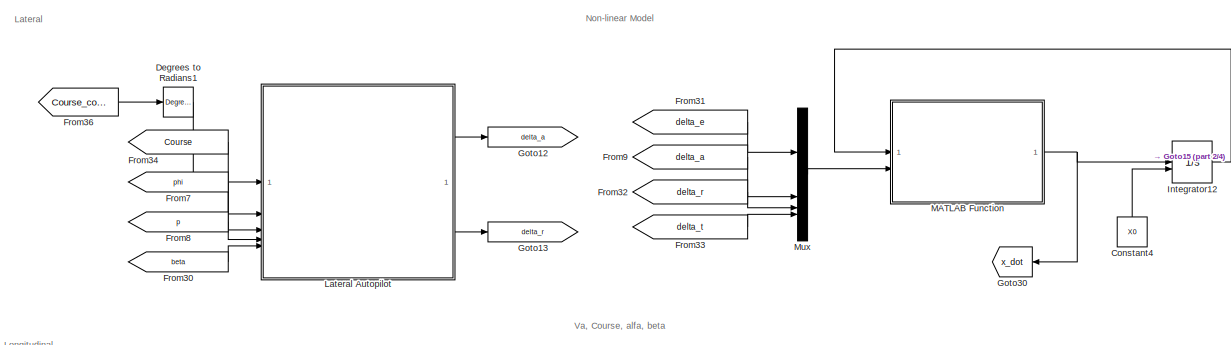
[diagram: root canvas - part 1/4, top left region]
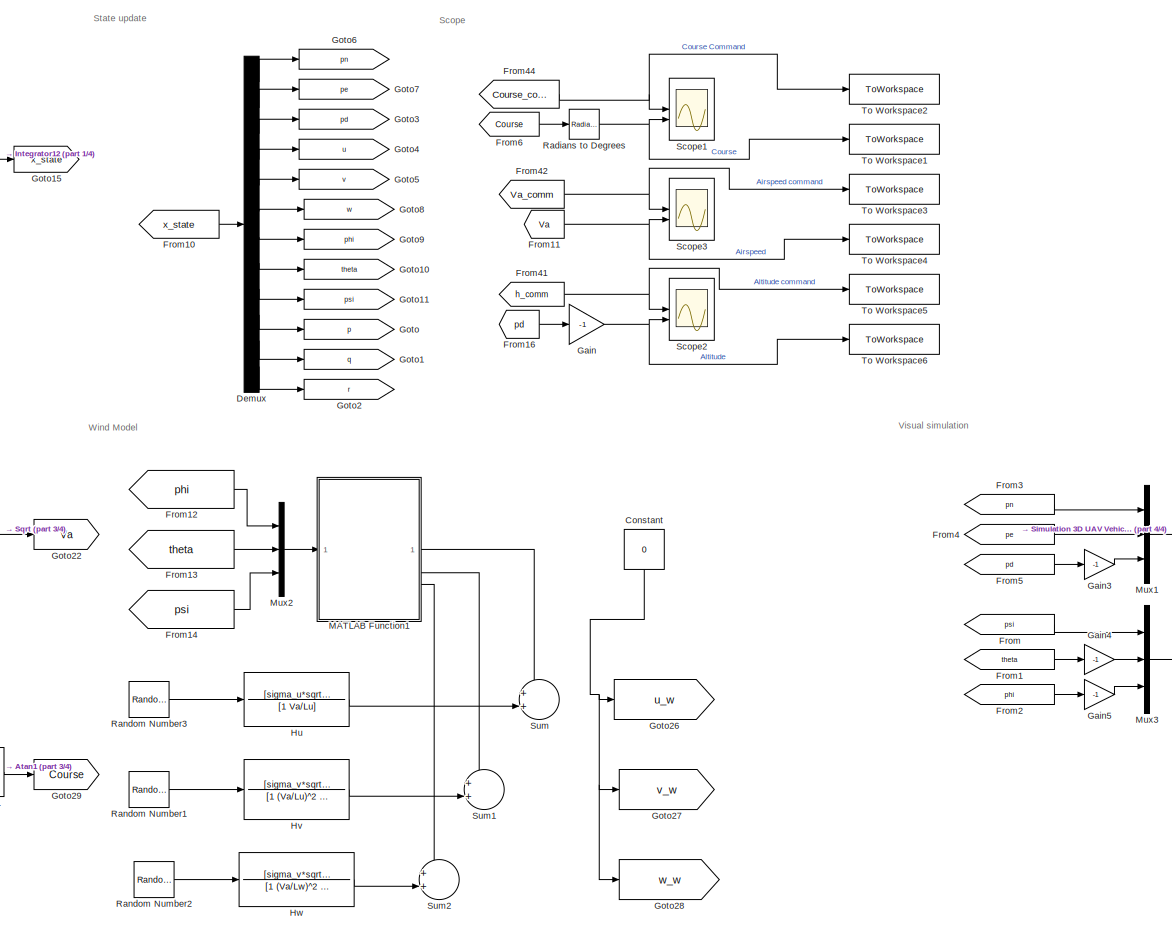
[diagram: root canvas - part 2/4, right side, full height]
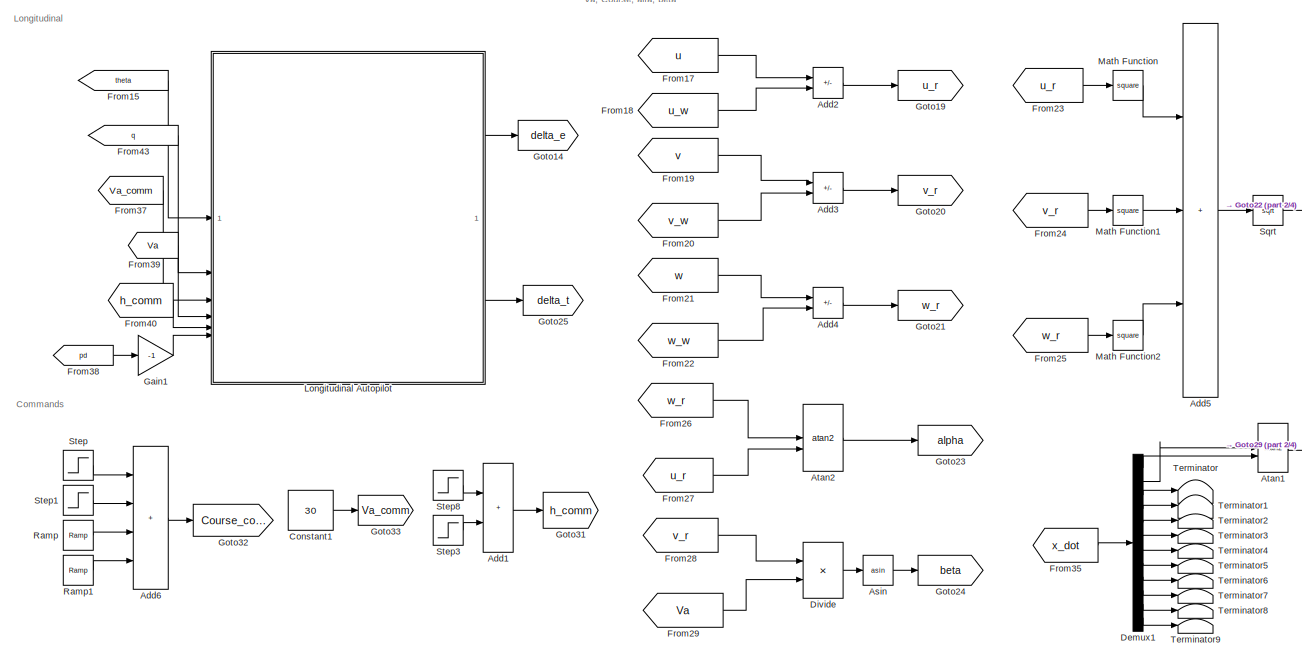
[diagram: root canvas - part 3/4, middle left region]
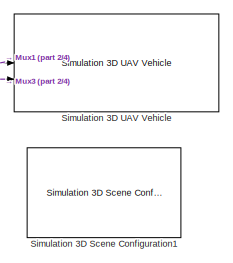
[diagram: root canvas - part 4/4, bottom right region]
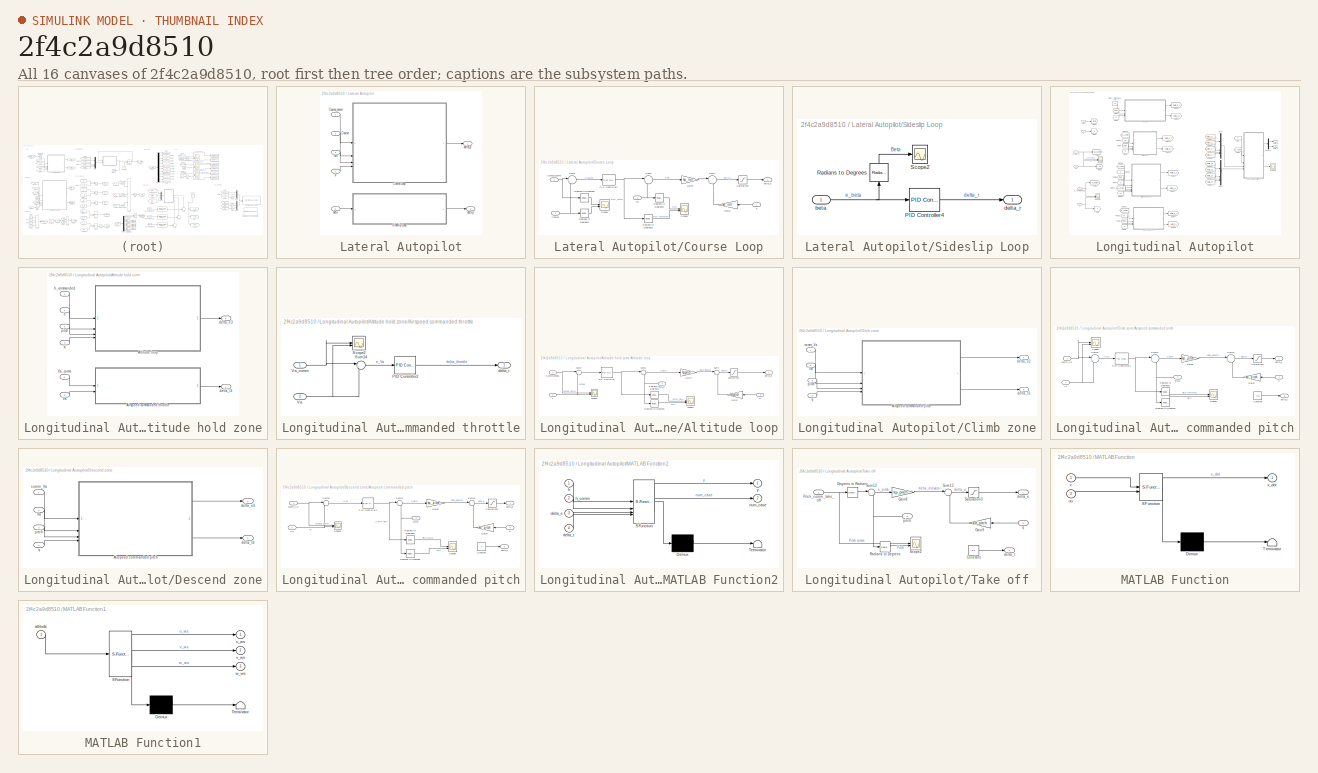
[diagram: thumbnail index - all 16 canvases of the model, root first then tree order]
MODEL slx_2f4c2a9d8510
KIND model
CONFIG AbsTol = auto
CONFIG EnableMultiTasking = off
CONFIG FixedStep = auto
CONFIG InitFcn = X0 = [0; 2; -0.25; 0.01; 0; 0; 0; 0; 0; 0; 0; 0]
CONFIG MaxStep = auto
CONFIG MinStep = auto
CONFIG RelTol = 1e-3
CONFIG SampleTimeConstraint = Unconstrained
CONFIG SolverName = VariableStepAuto
CONFIG StartTime = 0.0
CONFIG StopTime = 30
BLOCK [Sum] Add1
  IconShape = rectangular
BLOCK [Sum] Add2
  IconShape = rectangular
  Inputs = +-
BLOCK [Sum] Add3
  IconShape = rectangular
  Inputs = +-
BLOCK [Sum] Add4
  IconShape = rectangular
  Inputs = +-
BLOCK [Sum] Add5
  IconShape = rectangular
  Inputs = +++
BLOCK [Sum] Add6
  IconShape = rectangular
  Inputs = ++++
BLOCK [Trigonometry] Asin
  Operator = asin
BLOCK [Trigonometry] Atan1
  Operator = atan2
BLOCK [Trigonometry] Atan2
  Operator = atan2
BLOCK [Constant] Constant
  NameLocation = left
  Value = 0
BLOCK [Constant] Constant1
  Value = 30
BLOCK [Constant] Constant4
  NameLocation = right
  Value = X0
BLOCK [Reference] Degrees to Radians1  REF=simulink_extras/Transformations/Degrees to
Radians
  SourceBlock = simulink_extras/Transformations/Degrees to\nRadians
  SourceType = DegreesToRadians
BLOCK [Demux] Demux
  Outputs = 12
BLOCK [Demux] Demux1
  Outputs = 12
BLOCK [Product] Divide
  Inputs = */
BLOCK [From] From
  Commented = on
  GotoTag = psi
  TagVisibility = global
BLOCK [From] From1
  Commented = on
  GotoTag = theta
  TagVisibility = global
BLOCK [From] From10
  GotoTag = x_state
BLOCK [From] From11
  GotoTag = Va
  TagVisibility = global
BLOCK [From] From12
  GotoTag = phi
  TagVisibility = global
BLOCK [From] From13
  GotoTag = theta
  TagVisibility = global
BLOCK [From] From14
  GotoTag = psi
  TagVisibility = global
BLOCK [From] From15
  GotoTag = theta
  TagVisibility = global
BLOCK [From] From16
  GotoTag = pd
  TagVisibility = global
BLOCK [From] From17
  GotoTag = u
  TagVisibility = global
BLOCK [From] From18
  GotoTag = u_w
  TagVisibility = global
BLOCK [From] From19
  GotoTag = v
  TagVisibility = global
BLOCK [From] From2
  Commented = on
  GotoTag = phi
  TagVisibility = global
BLOCK [From] From20
  GotoTag = v_w
  TagVisibility = global
BLOCK [From] From21
  GotoTag = w
  TagVisibility = global
BLOCK [From] From22
  GotoTag = w_w
  TagVisibility = global
BLOCK [From] From23
  GotoTag = u_r
  TagVisibility = global
BLOCK [From] From24
  GotoTag = v_r
  TagVisibility = global
BLOCK [From] From25
  GotoTag = w_r
  TagVisibility = global
BLOCK [From] From26
  GotoTag = w_r
  TagVisibility = global
BLOCK [From] From27
  GotoTag = u_r
  TagVisibility = global
BLOCK [From] From28
  GotoTag = v_r
  TagVisibility = global
BLOCK [From] From29
  GotoTag = Va
  TagVisibility = global
BLOCK [From] From3
  Commented = on
  GotoTag = pn
  TagVisibility = global
BLOCK [From] From30
  GotoTag = beta
  TagVisibility = global
BLOCK [From] From31
  GotoTag = delta_e
  TagVisibility = global
BLOCK [From] From32
  GotoTag = delta_r
  TagVisibility = global
BLOCK [From] From33
  GotoTag = delta_t
  TagVisibility = global
BLOCK [From] From34
  GotoTag = Course
  TagVisibility = global
BLOCK [From] From35
  GotoTag = x_dot
  TagVisibility = global
BLOCK [From] From36
  GotoTag = Course_comm
BLOCK [From] From37
  GotoTag = Va_comm
BLOCK [From] From38
  GotoTag = pd
  TagVisibility = global
BLOCK [From] From39
  GotoTag = Va
  TagVisibility = global
BLOCK [From] From4
  Commented = on
  GotoTag = pe
  TagVisibility = global
BLOCK [From] From40
  GotoTag = h_comm
BLOCK [From] From41
  GotoTag = h_comm
BLOCK [From] From42
  GotoTag = Va_comm
BLOCK [From] From43
  GotoTag = q
  TagVisibility = global
BLOCK [From] From44
  GotoTag = Course_comm
BLOCK [From] From5
  Commented = on
  GotoTag = pd
  TagVisibility = global
BLOCK [From] From6
  GotoTag = Course
  TagVisibility = global
BLOCK [From] From7
  GotoTag = phi
  TagVisibility = global
BLOCK [From] From8
  GotoTag = p
  TagVisibility = global
BLOCK [From] From9
  GotoTag = delta_a
  TagVisibility = global
BLOCK [Gain] Gain
  Gain = -1
BLOCK [Gain] Gain1
  Gain = -1
BLOCK [Gain] Gain3
  Commented = on
  Gain = -1
BLOCK [Gain] Gain4
  Commented = on
  Gain = -1
BLOCK [Gain] Gain5
  Commented = on
  Gain = -1
BLOCK [Goto] Goto
  GotoTag = p
  TagVisibility = global
BLOCK [Goto] Goto1
  GotoTag = q
  TagVisibility = global
BLOCK [Goto] Goto10
  GotoTag = theta
  TagVisibility = global
BLOCK [Goto] Goto11
  GotoTag = psi
  TagVisibility = global
BLOCK [Goto] Goto12
  GotoTag = delta_a
  TagVisibility = global
BLOCK [Goto] Goto13
  GotoTag = delta_r
  TagVisibility = global
BLOCK [Goto] Goto14
  GotoTag = delta_e
  TagVisibility = global
BLOCK [Goto] Goto15
  GotoTag = x_state
BLOCK [Goto] Goto19
  GotoTag = u_r
  TagVisibility = global
BLOCK [Goto] Goto2
  GotoTag = r
  TagVisibility = global
BLOCK [Goto] Goto20
  GotoTag = v_r
  TagVisibility = global
BLOCK [Goto] Goto21
  GotoTag = w_r
  TagVisibility = global
BLOCK [Goto] Goto22
  GotoTag = Va
  TagVisibility = global
BLOCK [Goto] Goto23
  GotoTag = alpha
  TagVisibility = global
BLOCK [Goto] Goto24
  GotoTag = beta
  TagVisibility = global
BLOCK [Goto] Goto25
  GotoTag = delta_t
  TagVisibility = global
BLOCK [Goto] Goto26
  GotoTag = u_w
  TagVisibility = global
BLOCK [Goto] Goto27
  GotoTag = v_w
  TagVisibility = global
BLOCK [Goto] Goto28
  GotoTag = w_w
  TagVisibility = global
BLOCK [Goto] Goto29
  GotoTag = Course
  TagVisibility = global
BLOCK [Goto] Goto3
  GotoTag = pd
  TagVisibility = global
BLOCK [Goto] Goto30
  GotoTag = x_dot
  NameLocation = top
  TagVisibility = global
BLOCK [Goto] Goto31
  GotoTag = h_comm
BLOCK [Goto] Goto32
  GotoTag = Course_comm
BLOCK [Goto] Goto33
  GotoTag = Va_comm
BLOCK [Goto] Goto4
  GotoTag = u
  TagVisibility = global
BLOCK [Goto] Goto5
  GotoTag = v
  TagVisibility = global
BLOCK [Goto] Goto6
  GotoTag = pn
  TagVisibility = global
BLOCK [Goto] Goto7
  GotoTag = pe
  TagVisibility = global
BLOCK [Goto] Goto8
  GotoTag = w
  TagVisibility = global
BLOCK [Goto] Goto9
  GotoTag = phi
  TagVisibility = global
BLOCK [TransferFcn] Hu
  Denominator = [1 Va/Lu]
  Numerator = [sigma_u*sqrt(2*Va/Lu)]
BLOCK [TransferFcn] Hv
  Denominator = [1 (Va/Lu)^2 2*Va/Lu]
  Numerator = [sigma_v*sqrt(3*Va/Lu) Va/(sqrt(3)*Lv)]
BLOCK [TransferFcn] Hw
  Denominator = [1 (Va/Lw)^2 2*Va/Lw]
  Numerator = [sigma_v*sqrt(3*Va/Lw) Va/(sqrt(3)*Lw)]
BLOCK [Integrator] Integrator12
  InitialConditionSource = external
BLOCK [SubSystem] Lateral Autopilot
BLOCK [Inport] Lateral Autopilot/Course
  Port = 2
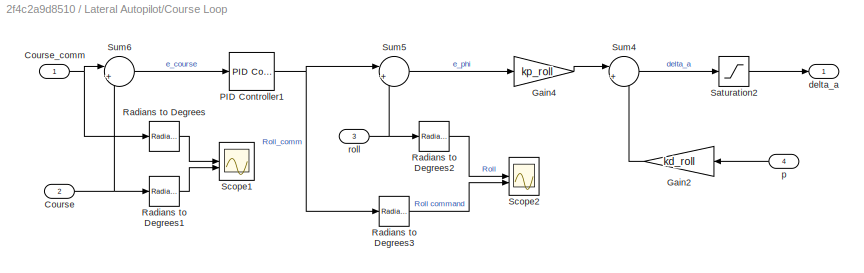
BLOCK [SubSystem] Lateral Autopilot/Course Loop
BLOCK [Inport] Lateral Autopilot/Course Loop/Course
  Port = 2
BLOCK [Inport] Lateral Autopilot/Course Loop/Course_comm
BLOCK [Gain] Lateral Autopilot/Course Loop/Gain2
  Gain = kd_roll
  NameLocation = top
BLOCK [Gain] Lateral Autopilot/Course Loop/Gain4
  Gain = kp_roll
BLOCK [Reference] Lateral Autopilot/Course Loop/PID Controller1  REF=slpidlib/PID Controller
  SourceBlock = slpidlib/PID Controller
  SourceType = PID 1dof
BLOCK [Reference] Lateral Autopilot/Course Loop/Radians to Degrees  REF=simulink_extras/Transformations/Radians
to Degrees
  SourceBlock = simulink_extras/Transformations/Radians\nto Degrees
  SourceType = RadiansToDegrees
BLOCK [Reference] Lateral Autopilot/Course Loop/Radians to Degrees1  REF=simulink_extras/Transformations/Radians
to Degrees
  SourceBlock = simulink_extras/Transformations/Radians\nto Degrees
  SourceType = RadiansToDegrees
BLOCK [Reference] Lateral Autopilot/Course Loop/Radians to Degrees2  REF=simulink_extras/Transformations/Radians
to Degrees
  SourceBlock = simulink_extras/Transformations/Radians\nto Degrees
  SourceType = RadiansToDegrees
BLOCK [Reference] Lateral Autopilot/Course Loop/Radians to Degrees3  REF=simulink_extras/Transformations/Radians
to Degrees
  SourceBlock = simulink_extras/Transformations/Radians\nto Degrees
  SourceType = RadiansToDegrees
BLOCK [Saturate] Lateral Autopilot/Course Loop/Saturation2
  LowerLimit = -0.52
  UpperLimit = 0.52
BLOCK [Scope] Lateral Autopilot/Course Loop/Scope1
  Floating = off
  NumInputPorts = 2
  ScopeSpecificationString = Simulink.scopes.TimeScopeBlockCfg('CurrentConfiguration', extmgr.ConfigurationSet(extmgr.Configuration('Core','General UI',true,'FigureColor',[1 1 1]),extmgr.Configuration('Core','Source UI',true),extmgr.Configuration('Sources','WiredSimulink',true,'DataLoggingVariableName','ScopeData4'),extmgr.Configuration('Visuals','Time Domain',true,'SerializedDisplays',{struct('MinYLimReal','-189.57402','MaxY...<+1759ch>
BLOCK [Scope] Lateral Autopilot/Course Loop/Scope2
  Floating = off
  NumInputPorts = 2
  ScopeSpecificationString = Simulink.scopes.TimeScopeBlockCfg('CurrentConfiguration', extmgr.ConfigurationSet(extmgr.Configuration('Core','General UI',true,'FigureColor',[1 1 1]),extmgr.Configuration('Core','Source UI',true),extmgr.Configuration('Sources','WiredSimulink',true,'DataLoggingVariableName','ScopeData3'),extmgr.Configuration('Visuals','Time Domain',true,'SerializedDisplays',{struct('MinYLimReal','-84.6318','MaxYLi...<+1722ch>
BLOCK [Sum] Lateral Autopilot/Course Loop/Sum4
  Inputs = |+-
BLOCK [Sum] Lateral Autopilot/Course Loop/Sum5
  Inputs = |+-
BLOCK [Sum] Lateral Autopilot/Course Loop/Sum6
  Inputs = |+-
BLOCK [Outport] Lateral Autopilot/Course Loop/delta_a
BLOCK [Inport] Lateral Autopilot/Course Loop/p
  NameLocation = top
  Port = 4
BLOCK [Inport] Lateral Autopilot/Course Loop/roll
  Port = 3
BLOCK [Inport] Lateral Autopilot/Course_comm
BLOCK [SubSystem] Lateral Autopilot/Sideslip Loop
BLOCK [Reference] Lateral Autopilot/Sideslip Loop/PID Controller4  REF=slpidlib/PID Controller
  SourceBlock = slpidlib/PID Controller
  SourceType = PID 1dof
BLOCK [Reference] Lateral Autopilot/Sideslip Loop/Radians to Degrees  REF=simulink_extras/Transformations/Radians
to Degrees
  NameLocation = right
  SourceBlock = simulink_extras/Transformations/Radians\nto Degrees
  SourceType = RadiansToDegrees
BLOCK [Scope] Lateral Autopilot/Sideslip Loop/Scope2
  Floating = off
  NumInputPorts = 1
  ScopeSpecificationString = Simulink.scopes.TimeScopeBlockCfg('CurrentConfiguration', extmgr.ConfigurationSet(extmgr.Configuration('Core','General UI',true,'FigureColor',[1 1 1]),extmgr.Configuration('Core','Source UI',true),extmgr.Configuration('Sources','WiredSimulink',true,'DataLoggingVariableName','ScopeData5'),extmgr.Configuration('Visuals','Time Domain',true,'SerializedDisplays',{struct('MinYLimReal','-13.89411','MaxYL...<+1746ch>
BLOCK [Inport] Lateral Autopilot/Sideslip Loop/beta
BLOCK [Outport] Lateral Autopilot/Sideslip Loop/delta_r
BLOCK [Inport] Lateral Autopilot/beta
  Port = 5
BLOCK [Outport] Lateral Autopilot/delta_a
BLOCK [Outport] Lateral Autopilot/delta_r
  Port = 2
BLOCK [Inport] Lateral Autopilot/p
  Port = 4
BLOCK [Inport] Lateral Autopilot/roll
  Port = 3
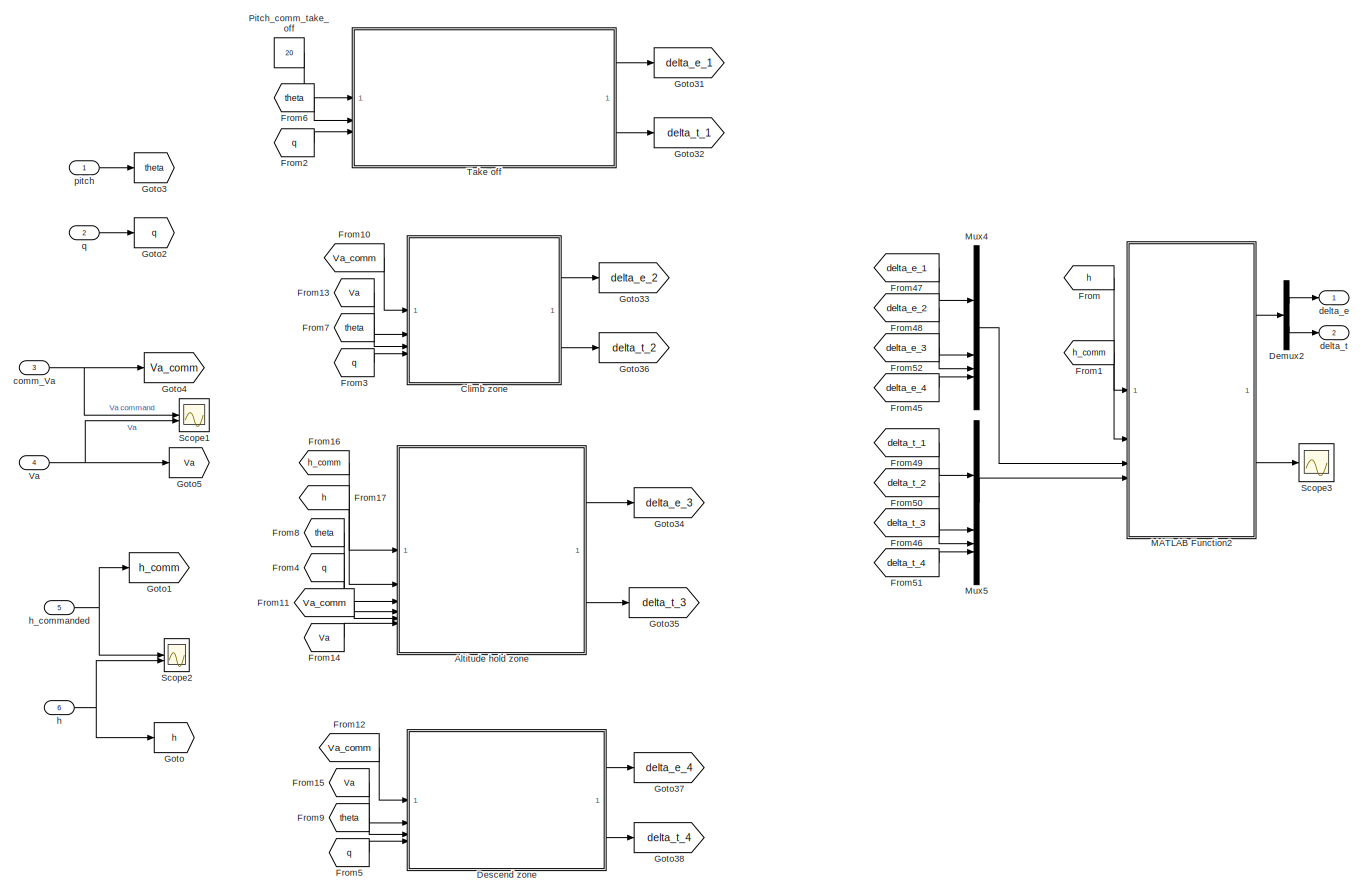
[diagram: Longitudinal Autopilot - part 1/1, most of the canvas]
BLOCK [SubSystem] Longitudinal Autopilot
BLOCK [SubSystem] Longitudinal Autopilot/Altitude hold zone
BLOCK [SubSystem] Longitudinal Autopilot/Altitude hold zone/Airspeed commanded throttle
BLOCK [Reference] Longitudinal Autopilot/Altitude hold zone/Airspeed commanded throttle/PID Controller2  REF=slpidlib/PID Controller
  SourceBlock = slpidlib/PID Controller
  SourceType = PID 1dof
BLOCK [Scope] Longitudinal Autopilot/Altitude hold zone/Airspeed commanded throttle/Scope2
  Floating = off
  NumInputPorts = 2
  ScopeSpecificationString = Simulink.scopes.TimeScopeBlockCfg('CurrentConfiguration', extmgr.ConfigurationSet(extmgr.Configuration('Core','General UI',true,'FigureColor',[1 1 1]),extmgr.Configuration('Core','Source UI',true),extmgr.Configuration('Sources','WiredSimulink',true,'DataLoggingVariableName','ScopeData14'),extmgr.Configuration('Visuals','Time Domain',true,'SerializedDisplays',{struct('MinYLimReal','19.10778','MaxYL...<+1727ch>
BLOCK [Sum] Longitudinal Autopilot/Altitude hold zone/Airspeed commanded throttle/Sum14
  Inputs = |+-
BLOCK [Inport] Longitudinal Autopilot/Altitude hold zone/Airspeed commanded throttle/Va
  Port = 2
BLOCK [Inport] Longitudinal Autopilot/Altitude hold zone/Airspeed commanded throttle/Va_comm
BLOCK [Outport] Longitudinal Autopilot/Altitude hold zone/Airspeed commanded throttle/delta_t
BLOCK [SubSystem] Longitudinal Autopilot/Altitude hold zone/Altitude loop
BLOCK [Gain] Longitudinal Autopilot/Altitude hold zone/Altitude loop/Gain4
  Gain = kp_pitch
BLOCK [Gain] Longitudinal Autopilot/Altitude hold zone/Altitude loop/Gain5
  Gain = kd_pitch
  NameLocation = top
BLOCK [Reference] Longitudinal Autopilot/Altitude hold zone/Altitude loop/PID Controller  REF=slpidlib/PID Controller
  SourceBlock = slpidlib/PID Controller
  SourceType = PID 1dof
BLOCK [Reference] Longitudinal Autopilot/Altitude hold zone/Altitude loop/Radians to Degrees  REF=simulink_extras/Transformations/Radians
to Degrees
  SourceBlock = simulink_extras/Transformations/Radians\nto Degrees
  SourceType = RadiansToDegrees
BLOCK [Reference] Longitudinal Autopilot/Altitude hold zone/Altitude loop/Radians to Degrees1  REF=simulink_extras/Transformations/Radians
to Degrees
  SourceBlock = simulink_extras/Transformations/Radians\nto Degrees
  SourceType = RadiansToDegrees
BLOCK [Saturate] Longitudinal Autopilot/Altitude hold zone/Altitude loop/Saturation2
  LowerLimit = -0.43
  UpperLimit = 0.43
BLOCK [Scope] Longitudinal Autopilot/Altitude hold zone/Altitude loop/Scope2
  Floating = off
  NumInputPorts = 2
  ScopeSpecificationString = Simulink.scopes.TimeScopeBlockCfg('CurrentConfiguration', extmgr.ConfigurationSet(extmgr.Configuration('Core','General UI',true,'FigureColor',[1 1 1]),extmgr.Configuration('Core','Source UI',true),extmgr.Configuration('Sources','WiredSimulink',true,'DataLoggingVariableName','ScopeData12'),extmgr.Configuration('Visuals','Time Domain',true,'SerializedDisplays',{struct('MinYLimReal','-15.15162','MaxY...<+1716ch>
BLOCK [Scope] Longitudinal Autopilot/Altitude hold zone/Altitude loop/Scope3
  Floating = off
  NumInputPorts = 2
  ScopeSpecificationString = Simulink.scopes.TimeScopeBlockCfg('CurrentConfiguration', extmgr.ConfigurationSet(extmgr.Configuration('Core','General UI',true,'FigureColor',[1 1 1]),extmgr.Configuration('Core','Source UI',true),extmgr.Configuration('Sources','WiredSimulink',true,'DataLoggingVariableName','ScopeData11'),extmgr.Configuration('Visuals','Time Domain',true,'SerializedDisplays',{struct('MinYLimReal','-21.44711','MaxY...<+1749ch>
BLOCK [Sum] Longitudinal Autopilot/Altitude hold zone/Altitude loop/Sum6
  Inputs = |+-
BLOCK [Sum] Longitudinal Autopilot/Altitude hold zone/Altitude loop/Sum7
  Inputs = |+-
BLOCK [Sum] Longitudinal Autopilot/Altitude hold zone/Altitude loop/Sum9
  Inputs = |+-
BLOCK [Outport] Longitudinal Autopilot/Altitude hold zone/Altitude loop/delta_e
BLOCK [Inport] Longitudinal Autopilot/Altitude hold zone/Altitude loop/h
  Port = 2
BLOCK [Inport] Longitudinal Autopilot/Altitude hold zone/Altitude loop/h_commanded
BLOCK [Inport] Longitudinal Autopilot/Altitude hold zone/Altitude loop/pitch
  NameLocation = top
  Port = 3
BLOCK [Inport] Longitudinal Autopilot/Altitude hold zone/Altitude loop/q
  Port = 4
BLOCK [Inport] Longitudinal Autopilot/Altitude hold zone/Va
  Port = 6
BLOCK [Inport] Longitudinal Autopilot/Altitude hold zone/Va_comm
  Port = 5
BLOCK [Outport] Longitudinal Autopilot/Altitude hold zone/delta_e3
BLOCK [Outport] Longitudinal Autopilot/Altitude hold zone/delta_t3
  Port = 2
BLOCK [Inport] Longitudinal Autopilot/Altitude hold zone/h
  Port = 2
BLOCK [Inport] Longitudinal Autopilot/Altitude hold zone/h_commanded
BLOCK [Inport] Longitudinal Autopilot/Altitude hold zone/pitch
  Port = 3
BLOCK [Inport] Longitudinal Autopilot/Altitude hold zone/q
  Port = 4
BLOCK [SubSystem] Longitudinal Autopilot/Climb zone
BLOCK [SubSystem] Longitudinal Autopilot/Climb zone/Airspeed commanded pitch
BLOCK [Constant] Longitudinal Autopilot/Climb zone/Airspeed commanded pitch/Constant
  Value = 0.5
BLOCK [Gain] Longitudinal Autopilot/Climb zone/Airspeed commanded pitch/Gain8
  Gain = kp_pitch
BLOCK [Gain] Longitudinal Autopilot/Climb zone/Airspeed commanded pitch/Gain9
  Gain = kd_pitch
  NameLocation = top
BLOCK [Reference] Longitudinal Autopilot/Climb zone/Airspeed commanded pitch/PID Controller3  REF=slpidlib/PID Controller
  SourceBlock = slpidlib/PID Controller
  SourceType = PID 1dof
BLOCK [Reference] Longitudinal Autopilot/Climb zone/Airspeed commanded pitch/Radians to Degrees  REF=simulink_extras/Transformations/Radians
to Degrees
  SourceBlock = simulink_extras/Transformations/Radians\nto Degrees
  SourceType = RadiansToDegrees
BLOCK [Reference] Longitudinal Autopilot/Climb zone/Airspeed commanded pitch/Radians to Degrees1  REF=simulink_extras/Transformations/Radians
to Degrees
  SourceBlock = simulink_extras/Transformations/Radians\nto Degrees
  SourceType = RadiansToDegrees
BLOCK [Saturate] Longitudinal Autopilot/Climb zone/Airspeed commanded pitch/Saturation3
  LowerLimit = -0.43
  UpperLimit = 0.43
BLOCK [Scope] Longitudinal Autopilot/Climb zone/Airspeed commanded pitch/Scope1
  Floating = off
  NumInputPorts = 2
  ScopeSpecificationString = Simulink.scopes.TimeScopeBlockCfg('CurrentConfiguration', extmgr.ConfigurationSet(extmgr.Configuration('Core','General UI',true,'FigureColor',[1 1 1]),extmgr.Configuration('Core','Source UI',true),extmgr.Configuration('Sources','WiredSimulink',true,'DataLoggingVariableName','ScopeData17'),extmgr.Configuration('Visuals','Time Domain',true,'SerializedDisplays',{struct('MinYLimReal','-12.27648','MaxY...<+1752ch>
BLOCK [Scope] Longitudinal Autopilot/Climb zone/Airspeed commanded pitch/Scope2
  Floating = off
  NumInputPorts = 2
  ScopeSpecificationString = Simulink.scopes.TimeScopeBlockCfg('CurrentConfiguration', extmgr.ConfigurationSet(extmgr.Configuration('Core','General UI',true,'FigureColor',[1 1 1]),extmgr.Configuration('Core','Source UI',true),extmgr.Configuration('Sources','WiredSimulink',true,'DataLoggingVariableName','ScopeData10'),extmgr.Configuration('Visuals','Time Domain',true,'SerializedDisplays',{struct('MinYLimReal','-3.81078','MaxYL...<+1706ch>
BLOCK [Sum] Longitudinal Autopilot/Climb zone/Airspeed commanded pitch/Sum10
  Inputs = |+-
BLOCK [Sum] Longitudinal Autopilot/Climb zone/Airspeed commanded pitch/Sum12
  Inputs = |+-
BLOCK [Sum] Longitudinal Autopilot/Climb zone/Airspeed commanded pitch/Sum13
  Inputs = |+-
BLOCK [Inport] Longitudinal Autopilot/Climb zone/Airspeed commanded pitch/Va
  Port = 2
BLOCK [Inport] Longitudinal Autopilot/Climb zone/Airspeed commanded pitch/comm_Va
BLOCK [Outport] Longitudinal Autopilot/Climb zone/Airspeed commanded pitch/delta_e
BLOCK [Outport] Longitudinal Autopilot/Climb zone/Airspeed commanded pitch/delta_t
  Port = 2
BLOCK [Inport] Longitudinal Autopilot/Climb zone/Airspeed commanded pitch/pitch
  NameLocation = top
  Port = 3
BLOCK [Inport] Longitudinal Autopilot/Climb zone/Airspeed commanded pitch/q
  Port = 4
BLOCK [Inport] Longitudinal Autopilot/Climb zone/Va
  Port = 2
BLOCK [Inport] Longitudinal Autopilot/Climb zone/comm_Va
BLOCK [Outport] Longitudinal Autopilot/Climb zone/delta_e2
BLOCK [Outport] Longitudinal Autopilot/Climb zone/delta_t2
  Port = 2
BLOCK [Inport] Longitudinal Autopilot/Climb zone/pitch
  Port = 3
BLOCK [Inport] Longitudinal Autopilot/Climb zone/q
  Port = 4
BLOCK [Demux] Longitudinal Autopilot/Demux2
  Outputs = 2
BLOCK [SubSystem] Longitudinal Autopilot/Descend zone
BLOCK [SubSystem] Longitudinal Autopilot/Descend zone/Airspeed commanded pitch
BLOCK [Constant] Longitudinal Autopilot/Descend zone/Airspeed commanded pitch/Constant
  Value = 0
BLOCK [Gain] Longitudinal Autopilot/Descend zone/Airspeed commanded pitch/Gain8
  Gain = kp_pitch
BLOCK [Gain] Longitudinal Autopilot/Descend zone/Airspeed commanded pitch/Gain9
  Gain = kd_pitch
  NameLocation = top
BLOCK [Reference] Longitudinal Autopilot/Descend zone/Airspeed commanded pitch/PID Controller1  REF=slpidlib/PID Controller
  SourceBlock = slpidlib/PID Controller
  SourceType = PID 1dof
BLOCK [Reference] Longitudinal Autopilot/Descend zone/Airspeed commanded pitch/Radians to Degrees  REF=simulink_extras/Transformations/Radians
to Degrees
  SourceBlock = simulink_extras/Transformations/Radians\nto Degrees
  SourceType = RadiansToDegrees
BLOCK [Reference] Longitudinal Autopilot/Descend zone/Airspeed commanded pitch/Radians to Degrees1  REF=simulink_extras/Transformations/Radians
to Degrees
  SourceBlock = simulink_extras/Transformations/Radians\nto Degrees
  SourceType = RadiansToDegrees
BLOCK [Saturate] Longitudinal Autopilot/Descend zone/Airspeed commanded pitch/Saturation3
  LowerLimit = -0.43
  UpperLimit = 0.43
BLOCK [Scope] Longitudinal Autopilot/Descend zone/Airspeed commanded pitch/Scope2
  Floating = off
  NumInputPorts = 2
  ScopeSpecificationString = Simulink.scopes.TimeScopeBlockCfg('CurrentConfiguration', extmgr.ConfigurationSet(extmgr.Configuration('Core','General UI',true,'FigureColor',[1 1 1]),extmgr.Configuration('Core','Source UI',true),extmgr.Configuration('Sources','WiredSimulink',true,'DataLoggingVariableName','ScopeData15'),extmgr.Configuration('Visuals','Time Domain',true,'SerializedDisplays',{struct('MinYLimReal','-4.23846','MaxYL...<+1731ch>
BLOCK [Scope] Longitudinal Autopilot/Descend zone/Airspeed commanded pitch/Scope3
  Floating = off
  NumInputPorts = 2
  ScopeSpecificationString = Simulink.scopes.TimeScopeBlockCfg('CurrentConfiguration', extmgr.ConfigurationSet(extmgr.Configuration('Core','General UI',true,'FigureColor',[1 1 1]),extmgr.Configuration('Core','Source UI',true),extmgr.Configuration('Sources','WiredSimulink',true,'DataLoggingVariableName','ScopeData13'),extmgr.Configuration('Visuals','Time Domain',true,'SerializedDisplays',{struct('MinYLimReal','-28.36748','MaxY...<+1749ch>
BLOCK [Sum] Longitudinal Autopilot/Descend zone/Airspeed commanded pitch/Sum10
  Inputs = |+-
BLOCK [Sum] Longitudinal Autopilot/Descend zone/Airspeed commanded pitch/Sum12
  Inputs = |+-
BLOCK [Sum] Longitudinal Autopilot/Descend zone/Airspeed commanded pitch/Sum13
  Inputs = |+-
BLOCK [Inport] Longitudinal Autopilot/Descend zone/Airspeed commanded pitch/Va
  Port = 2
BLOCK [Inport] Longitudinal Autopilot/Descend zone/Airspeed commanded pitch/comm_Va
BLOCK [Outport] Longitudinal Autopilot/Descend zone/Airspeed commanded pitch/delta_e
BLOCK [Outport] Longitudinal Autopilot/Descend zone/Airspeed commanded pitch/delta_t
  Port = 2
BLOCK [Inport] Longitudinal Autopilot/Descend zone/Airspeed commanded pitch/pitch
  NameLocation = top
  Port = 3
BLOCK [Inport] Longitudinal Autopilot/Descend zone/Airspeed commanded pitch/q
  Port = 4
BLOCK [Inport] Longitudinal Autopilot/Descend zone/Va
  Port = 2
BLOCK [Inport] Longitudinal Autopilot/Descend zone/comm_Va
BLOCK [Outport] Longitudinal Autopilot/Descend zone/delta_e4
BLOCK [Outport] Longitudinal Autopilot/Descend zone/delta_t4
  Port = 2
BLOCK [Inport] Longitudinal Autopilot/Descend zone/pitch
  Port = 3
BLOCK [Inport] Longitudinal Autopilot/Descend zone/q
  Port = 4
BLOCK [From] Longitudinal Autopilot/From
  GotoTag = h
BLOCK [From] Longitudinal Autopilot/From1
  GotoTag = h_comm
BLOCK [From] Longitudinal Autopilot/From10
  GotoTag = Va_comm
BLOCK [From] Longitudinal Autopilot/From11
  GotoTag = Va_comm
BLOCK [From] Longitudinal Autopilot/From12
  GotoTag = Va_comm
BLOCK [From] Longitudinal Autopilot/From13
  GotoTag = Va
BLOCK [From] Longitudinal Autopilot/From14
  GotoTag = Va
BLOCK [From] Longitudinal Autopilot/From15
  GotoTag = Va
BLOCK [From] Longitudinal Autopilot/From16
  GotoTag = h_comm
BLOCK [From] Longitudinal Autopilot/From17
  GotoTag = h
BLOCK [From] Longitudinal Autopilot/From2
  GotoTag = q
BLOCK [From] Longitudinal Autopilot/From3
  GotoTag = q
BLOCK [From] Longitudinal Autopilot/From4
  GotoTag = q
BLOCK [From] Longitudinal Autopilot/From45
  GotoTag = delta_e_4
BLOCK [From] Longitudinal Autopilot/From46
  GotoTag = delta_t_3
BLOCK [From] Longitudinal Autopilot/From47
  GotoTag = delta_e_1
BLOCK [From] Longitudinal Autopilot/From48
  GotoTag = delta_e_2
BLOCK [From] Longitudinal Autopilot/From49
  GotoTag = delta_t_1
BLOCK [From] Longitudinal Autopilot/From5
  GotoTag = q
BLOCK [From] Longitudinal Autopilot/From50
  GotoTag = delta_t_2
BLOCK [From] Longitudinal Autopilot/From51
  GotoTag = delta_t_4
BLOCK [From] Longitudinal Autopilot/From52
  GotoTag = delta_e_3
BLOCK [From] Longitudinal Autopilot/From6
  GotoTag = theta
BLOCK [From] Longitudinal Autopilot/From7
  GotoTag = theta
BLOCK [From] Longitudinal Autopilot/From8
  GotoTag = theta
BLOCK [From] Longitudinal Autopilot/From9
  GotoTag = theta
BLOCK [Goto] Longitudinal Autopilot/Goto
  GotoTag = h
BLOCK [Goto] Longitudinal Autopilot/Goto1
  GotoTag = h_comm
BLOCK [Goto] Longitudinal Autopilot/Goto2
  GotoTag = q
BLOCK [Goto] Longitudinal Autopilot/Goto3
  GotoTag = theta
BLOCK [Goto] Longitudinal Autopilot/Goto31
  GotoTag = delta_e_1
BLOCK [Goto] Longitudinal Autopilot/Goto32
  GotoTag = delta_t_1
BLOCK [Goto] Longitudinal Autopilot/Goto33
  GotoTag = delta_e_2
BLOCK [Goto] Longitudinal Autopilot/Goto34
  GotoTag = delta_e_3
BLOCK [Goto] Longitudinal Autopilot/Goto35
  GotoTag = delta_t_3
BLOCK [Goto] Longitudinal Autopilot/Goto36
  GotoTag = delta_t_2
BLOCK [Goto] Longitudinal Autopilot/Goto37
  GotoTag = delta_e_4
BLOCK [Goto] Longitudinal Autopilot/Goto38
  GotoTag = delta_t_4
BLOCK [Goto] Longitudinal Autopilot/Goto4
  GotoTag = Va_comm
BLOCK [Goto] Longitudinal Autopilot/Goto5
  GotoTag = Va
BLOCK [SubSystem] Longitudinal Autopilot/MATLAB Function2
  ErrorFcn = Stateflow.Translate.translate
  PermitHierarchicalResolution = ExplicitOnly
  SFBlockType = MATLAB Function
  TreatAsAtomicUnit = on
BLOCK [Demux] Longitudinal Autopilot/MATLAB Function2/ Demux 
  Outputs = 1
BLOCK [S-Function] Longitudinal Autopilot/MATLAB Function2/ SFunction 
  EnableBusSupport = on
  FunctionName = sf_sfun
  PortCounts = [4 3]
  SFcnIsStateOwnerBlock = off
  SFunctionDeploymentMode = off
  Tag = Stateflow S-Function 1
BLOCK [Terminator] Longitudinal Autopilot/MATLAB Function2/ Terminator 
BLOCK [Inport] Longitudinal Autopilot/MATLAB Function2/delta_e
  Port = 3
BLOCK [Inport] Longitudinal Autopilot/MATLAB Function2/delta_t
  Port = 4
BLOCK [Inport] Longitudinal Autopilot/MATLAB Function2/h
BLOCK [Inport] Longitudinal Autopilot/MATLAB Function2/h_comm
  Port = 2
BLOCK [Outport] Longitudinal Autopilot/MATLAB Function2/num_case
  Port = 2
BLOCK [Outport] Longitudinal Autopilot/MATLAB Function2/y
BLOCK [Mux] Longitudinal Autopilot/Mux4
  DisplayOption = bar
BLOCK [Mux] Longitudinal Autopilot/Mux5
  DisplayOption = bar
BLOCK [Constant] Longitudinal Autopilot/Pitch_comm_take_off
  Value = 20
BLOCK [Scope] Longitudinal Autopilot/Scope1
  Floating = off
  NumInputPorts = 2
  ScopeSpecificationString = Simulink.scopes.TimeScopeBlockCfg('CurrentConfiguration', extmgr.ConfigurationSet(extmgr.Configuration('Core','General UI',true,'FigureColor',[1 1 1]),extmgr.Configuration('Core','Source UI',true),extmgr.Configuration('Sources','WiredSimulink',true,'DataLoggingVariableName','ScopeData7'),extmgr.Configuration('Visuals','Time Domain',true,'SerializedDisplays',{struct('MinYLimReal','24.0412','MaxYLim...<+1721ch>
BLOCK [Scope] Longitudinal Autopilot/Scope2
  Floating = off
  NumInputPorts = 2
  ScopeSpecificationString = Simulink.scopes.TimeScopeBlockCfg('CurrentConfiguration', extmgr.ConfigurationSet(extmgr.Configuration('Core','General UI',true,'FigureColor',[1 1 1]),extmgr.Configuration('Core','Source UI',true),extmgr.Configuration('Sources','WiredSimulink',true,'DataLoggingVariableName','ScopeData6'),extmgr.Configuration('Visuals','Time Domain',true,'SerializedDisplays',{struct('MinYLimReal','-15.10672','MaxYL...<+1729ch>
BLOCK [Scope] Longitudinal Autopilot/Scope3
  Floating = off
  NumInputPorts = 1
  ScopeSpecificationString = Simulink.scopes.TimeScopeBlockCfg('CurrentConfiguration', extmgr.ConfigurationSet(extmgr.Configuration('Core','General UI',true,'FigureColor',[1 1 1]),extmgr.Configuration('Core','Source UI',true),extmgr.Configuration('Sources','WiredSimulink',true,'DataLoggingVariableName','ScopeData8'),extmgr.Configuration('Visuals','Time Domain',true,'SerializedDisplays',{struct('MinYLimReal','0.625','MaxYLimRe...<+1666ch>
BLOCK [SubSystem] Longitudinal Autopilot/Take off
  TreatAsAtomicUnit = on
BLOCK [Constant] Longitudinal Autopilot/Take off/Constant
  Value = 0.5
BLOCK [Reference] Longitudinal Autopilot/Take off/Degrees to Radians  REF=simulink_extras/Transformations/Degrees to
Radians
  SourceBlock = simulink_extras/Transformations/Degrees to\nRadians
  SourceType = DegreesToRadians
BLOCK [Gain] Longitudinal Autopilot/Take off/Gain8
  Gain = kp_pitch
BLOCK [Gain] Longitudinal Autopilot/Take off/Gain9
  Gain = kd_pitch
  NameLocation = top
BLOCK [Inport] Longitudinal Autopilot/Take off/Pitch_comm_take_off
BLOCK [Reference] Longitudinal Autopilot/Take off/Radians to Degrees  REF=simulink_extras/Transformations/Radians
to Degrees
  SourceBlock = simulink_extras/Transformations/Radians\nto Degrees
  SourceType = RadiansToDegrees
BLOCK [Saturate] Longitudinal Autopilot/Take off/Saturation3
  LowerLimit = -0.43
  UpperLimit = 0.43
BLOCK [Scope] Longitudinal Autopilot/Take off/Scope2
  Floating = off
  NumInputPorts = 2
  ScopeSpecificationString = Simulink.scopes.TimeScopeBlockCfg('CurrentConfiguration', extmgr.ConfigurationSet(extmgr.Configuration('Core','General UI',true,'FigureColor',[1 1 1]),extmgr.Configuration('Core','Source UI',true),extmgr.Configuration('Sources','WiredSimulink',true,'DataLoggingVariableName','ScopeData9'),extmgr.Configuration('Visuals','Time Domain',true,'SerializedDisplays',{struct('MinYLimReal','-29.66529','MaxYL...<+1749ch>
BLOCK [Sum] Longitudinal Autopilot/Take off/Sum12
  Inputs = |+-
BLOCK [Sum] Longitudinal Autopilot/Take off/Sum13
  Inputs = |+-
BLOCK [Outport] Longitudinal Autopilot/Take off/delta_e
BLOCK [Outport] Longitudinal Autopilot/Take off/delta_t
  Port = 2
BLOCK [Inport] Longitudinal Autopilot/Take off/pitch
  NameLocation = top
  Port = 2
BLOCK [Inport] Longitudinal Autopilot/Take off/q
  Port = 3
BLOCK [Inport] Longitudinal Autopilot/Va
  Port = 4
BLOCK [Inport] Longitudinal Autopilot/comm_Va
  Port = 3
BLOCK [Outport] Longitudinal Autopilot/delta_e
BLOCK [Outport] Longitudinal Autopilot/delta_t
  Port = 2
BLOCK [Inport] Longitudinal Autopilot/h
  Port = 6
BLOCK [Inport] Longitudinal Autopilot/h_commanded
  Port = 5
BLOCK [Inport] Longitudinal Autopilot/pitch
BLOCK [Inport] Longitudinal Autopilot/q
  Port = 2
BLOCK [SubSystem] MATLAB Function
  ErrorFcn = Stateflow.Translate.translate
  PermitHierarchicalResolution = ExplicitOnly
  SFBlockType = MATLAB Function
  TreatAsAtomicUnit = on
BLOCK [Demux] MATLAB Function/ Demux 
  Outputs = 1
BLOCK [S-Function] MATLAB Function/ SFunction 
  EnableBusSupport = on
  FunctionName = sf_sfun
  PortCounts = [2 2]
  SFcnIsStateOwnerBlock = off
  SFunctionDeploymentMode = off
  Tag = Stateflow S-Function 2
BLOCK [Terminator] MATLAB Function/ Terminator 
BLOCK [Inport] MATLAB Function/uu
  Port = 2
BLOCK [Inport] MATLAB Function/x
BLOCK [Outport] MATLAB Function/x_dot
BLOCK [SubSystem] MATLAB Function1
  ErrorFcn = Stateflow.Translate.translate
  PermitHierarchicalResolution = ExplicitOnly
  SFBlockType = MATLAB Function
  TreatAsAtomicUnit = on
BLOCK [Demux] MATLAB Function1/ Demux 
  Outputs = 1
BLOCK [S-Function] MATLAB Function1/ SFunction 
  EnableBusSupport = on
  FunctionName = sf_sfun
  PortCounts = [1 4]
  SFcnIsStateOwnerBlock = off
  SFunctionDeploymentMode = off
  Tag = Stateflow S-Function 3
BLOCK [Terminator] MATLAB Function1/ Terminator 
BLOCK [Inport] MATLAB Function1/attitude
BLOCK [Outport] MATLAB Function1/u_ws
BLOCK [Outport] MATLAB Function1/v_ws
  Port = 2
BLOCK [Outport] MATLAB Function1/w_ws
  Port = 3
BLOCK [Math] Math Function
  Operator = square
BLOCK [Math] Math Function1
  Operator = square
BLOCK [Math] Math Function2
  Operator = square
BLOCK [Mux] Mux
  DisplayOption = bar
BLOCK [Mux] Mux1
  Commented = on
  DisplayOption = bar
  Inputs = 3
BLOCK [Mux] Mux2
  DisplayOption = bar
  Inputs = 3
BLOCK [Mux] Mux3
  Commented = on
  DisplayOption = bar
  Inputs = 3
BLOCK [Reference] Radians to Degrees  REF=simulink_extras/Transformations/Radians
to Degrees
  SourceBlock = simulink_extras/Transformations/Radians\nto Degrees
  SourceType = RadiansToDegrees
BLOCK [Reference] Ramp  REF=simulink/Sources/Ramp
  SourceBlock = simulink/Sources/Ramp
  SourceType = Ramp
BLOCK [Reference] Ramp1  REF=simulink/Sources/Ramp
  SourceBlock = simulink/Sources/Ramp
  SourceType = Ramp
BLOCK [RandomNumber] Random Number1
  SampleTime = 0.1
  Variance = sigma_v
BLOCK [RandomNumber] Random Number2
  SampleTime = 0.1
  Variance = sigma_w
BLOCK [RandomNumber] Random Number3
  SampleTime = 0.1
  Variance = sigma_u
BLOCK [Scope] Scope1
  Floating = off
  NumInputPorts = 2
  ScopeSpecificationString = Simulink.scopes.TimeScopeBlockCfg('CurrentConfiguration', extmgr.ConfigurationSet(extmgr.Configuration('Core','General UI',true,'FigureColor',[1 1 1]),extmgr.Configuration('Core','Source UI',true),extmgr.Configuration('Sources','WiredSimulink',true,'DataLoggingVariableName','ScopeData1'),extmgr.Configuration('Visuals','Time Domain',true,'SerializedDisplays',{struct('MinYLimReal','-1.00000','MaxYLi...<+1728ch>
BLOCK [Scope] Scope2
  Floating = off
  NumInputPorts = 2
  ScopeSpecificationString = Simulink.scopes.TimeScopeBlockCfg('CurrentConfiguration', extmgr.ConfigurationSet(extmgr.Configuration('Core','General UI',true,'FigureColor',[1 1 1]),extmgr.Configuration('Core','Source UI',true),extmgr.Configuration('Sources','WiredSimulink',true,'DataLoggingVariableName','ScopeData3'),extmgr.Configuration('Visuals','Time Domain',true,'SerializedDisplays',{struct('MinYLimReal','-15.14737','MaxYL...<+1720ch>
BLOCK [Scope] Scope3
  Floating = off
  NumInputPorts = 2
  ScopeSpecificationString = Simulink.scopes.TimeScopeBlockCfg('CurrentConfiguration', extmgr.ConfigurationSet(extmgr.Configuration('Core','General UI',true,'FigureColor',[1 1 1]),extmgr.Configuration('Core','Source UI',true),extmgr.Configuration('Sources','WiredSimulink',true,'DataLoggingVariableName','ScopeData2'),extmgr.Configuration('Visuals','Time Domain',true,'SerializedDisplays',{struct('MinYLimReal','-4.27495','MaxYLi...<+1720ch>
BLOCK [Reference] Simulation 3D Scene Configuration1  REF=sim3dlib/Simulation 3D Scene Configuration
  Commented = on
  LibrarySourceBlock = aerolibsim3d/Simulation 3D Scene Configuration
  Priority = 0
  SourceBlock = sim3dlib/Simulation 3D Scene Configuration
  SourceType = Simulation 3D Scene Configuration
BLOCK [Reference] Simulation 3D UAV Vehicle  REF=uavsim3dlib/Simulation 3D UAV Vehicle
  Commented = on
  Priority = -1
  SourceBlock = uavsim3dlib/Simulation 3D UAV Vehicle
  SourceType = Simulation 3D UAV Vehicle
BLOCK [Sqrt] Sqrt
BLOCK [Step] Step
  After = 40
  SampleTime = 0
  Time = 31
BLOCK [Step] Step1
  After = -80
  SampleTime = 0
  Time = 39
BLOCK [Step] Step3
  After = -60
  SampleTime = 0
  Time = 15
BLOCK [Step] Step8
  After = 120
  SampleTime = 0
  Time = 0
BLOCK [Sum] Sum
  Inputs = ++|
BLOCK [Sum] Sum1
  Inputs = ++|
BLOCK [Sum] Sum2
  Inputs = ++|
BLOCK [Terminator] Terminator
BLOCK [Terminator] Terminator1
BLOCK [Terminator] Terminator2
BLOCK [Terminator] Terminator3
BLOCK [Terminator] Terminator4
BLOCK [Terminator] Terminator5
BLOCK [Terminator] Terminator6
BLOCK [Terminator] Terminator7
BLOCK [Terminator] Terminator8
BLOCK [Terminator] Terminator9
BLOCK [ToWorkspace] To Workspace1
  FixptAsFi = on
  MaxDataPoints = inf
  SampleTime = -1
  Save2DSignal = 2-D array (concatenate along first dimension)
  VariableName = course
BLOCK [ToWorkspace] To Workspace2
  FixptAsFi = on
  MaxDataPoints = inf
  SampleTime = -1
  Save2DSignal = 2-D array (concatenate along first dimension)
  VariableName = comm_course
BLOCK [ToWorkspace] To Workspace3
  FixptAsFi = on
  MaxDataPoints = inf
  SampleTime = -1
  Save2DSignal = 2-D array (concatenate along first dimension)
  VariableName = comm_Va
BLOCK [ToWorkspace] To Workspace4
  FixptAsFi = on
  MaxDataPoints = inf
  SampleTime = -1
  Save2DSignal = 2-D array (concatenate along first dimension)
  VariableName = Va
BLOCK [ToWorkspace] To Workspace5
  FixptAsFi = on
  MaxDataPoints = inf
  SampleTime = -1
  Save2DSignal = 2-D array (concatenate along first dimension)
  VariableName = comm_h
BLOCK [ToWorkspace] To Workspace6
  FixptAsFi = on
  MaxDataPoints = inf
  SampleTime = -1
  Save2DSignal = 2-D array (concatenate along first dimension)
  VariableName = h
ANNOTATION (root): Commands
ANNOTATION (root): Lateral
ANNOTATION (root): Longitudinal
ANNOTATION (root): Non-linear Model
ANNOTATION (root): Scope
ANNOTATION (root): State update
ANNOTATION (root): Va, Course, alfa, beta
ANNOTATION (root): Visual simulation
ANNOTATION (root): Wind Model
LINE Add1:1 -> Goto31:1
LINE Add2:1 -> Goto19:1
LINE Add3:1 -> Goto20:1
LINE Add4:1 -> Goto21:1
LINE Add5:1 -> Sqrt:1
LINE Add6:1 -> Goto32:1
LINE Asin:1 -> Goto24:1
LINE Atan1:1 -> Goto29:1
LINE Atan2:1 -> Goto23:1
LINE Constant1:1 -> Goto33:1
LINE Constant4:1 -> Integrator12:2
NET Constant:1 -> Goto26:1, Goto27:1, Goto28:1
LINE Degrees to Radians1:1 -> Lateral Autopilot:1
LINE Demux1:1 -> Atan1:2
LINE Demux1:10 -> Terminator7:1
LINE Demux1:11 -> Terminator8:1
LINE Demux1:12 -> Terminator9:1
LINE Demux1:2 -> Atan1:1
LINE Demux1:3 -> Terminator:1
LINE Demux1:4 -> Terminator1:1
LINE Demux1:5 -> Terminator2:1
LINE Demux1:6 -> Terminator3:1
LINE Demux1:7 -> Terminator4:1
LINE Demux1:8 -> Terminator5:1
LINE Demux1:9 -> Terminator6:1
LINE Demux:1 -> Goto6:1
LINE Demux:10 -> Goto:1
LINE Demux:11 -> Goto1:1
LINE Demux:12 -> Goto2:1
LINE Demux:2 -> Goto7:1
LINE Demux:3 -> Goto3:1
LINE Demux:4 -> Goto4:1
LINE Demux:5 -> Goto5:1
LINE Demux:6 -> Goto8:1
LINE Demux:7 -> Goto9:1
LINE Demux:8 -> Goto10:1
LINE Demux:9 -> Goto11:1
LINE Divide:1 -> Asin:1
LINE From10:1 -> Demux:1
NET From11:1 -> Scope3:2, To Workspace4:1
LINE From12:1 -> Mux2:1
LINE From13:1 -> Mux2:2
LINE From14:1 -> Mux2:3
LINE From15:1 -> Longitudinal Autopilot:1
LINE From16:1 -> Gain:1
LINE From17:1 -> Add2:1
LINE From18:1 -> Add2:2
LINE From19:1 -> Add3:1
LINE From1:1 -> Gain4:1
LINE From20:1 -> Add3:2
LINE From21:1 -> Add4:1
LINE From22:1 -> Add4:2
LINE From23:1 -> Math Function:1
LINE From24:1 -> Math Function1:1
LINE From25:1 -> Math Function2:1
LINE From26:1 -> Atan2:1
LINE From27:1 -> Atan2:2
LINE From28:1 -> Divide:1
LINE From29:1 -> Divide:2
LINE From2:1 -> Gain5:1
LINE From30:1 -> Lateral Autopilot:5
LINE From31:1 -> Mux:1
LINE From32:1 -> Mux:3
LINE From33:1 -> Mux:4
LINE From34:1 -> Lateral Autopilot:2
LINE From35:1 -> Demux1:1
LINE From36:1 -> Degrees to Radians1:1
LINE From37:1 -> Longitudinal Autopilot:3
LINE From38:1 -> Gain1:1
LINE From39:1 -> Longitudinal Autopilot:4
LINE From3:1 -> Mux1:1
LINE From40:1 -> Longitudinal Autopilot:5
NET From41:1 -> Scope2:1, To Workspace5:1
NET From42:1 -> Scope3:1, To Workspace3:1
LINE From43:1 -> Longitudinal Autopilot:2
NET From44:1 -> Scope1:1, To Workspace2:1
LINE From4:1 -> Mux1:2
LINE From5:1 -> Gain3:1
LINE From6:1 -> Radians to Degrees:1
LINE From7:1 -> Lateral Autopilot:3
LINE From8:1 -> Lateral Autopilot:4
LINE From9:1 -> Mux:2
LINE From:1 -> Mux3:1
LINE Gain1:1 -> Longitudinal Autopilot:6
LINE Gain3:1 -> Mux1:3
LINE Gain4:1 -> Mux3:2
LINE Gain5:1 -> Mux3:3
NET Gain:1 -> Scope2:2, To Workspace6:1
LINE Hu:1 -> Sum:2
LINE Hv:1 -> Sum1:2
LINE Hw:1 -> Sum2:2
NET Integrator12:1 -> Goto15:1, MATLAB Function:1
NET Lateral Autopilot/Course Loop/Course:1 -> Lateral Autopilot/Course Loop/Radians to Degrees1:1, Lateral Autopilot/Course Loop/Sum6:2
NET Lateral Autopilot/Course Loop/Course_comm:1 -> Lateral Autopilot/Course Loop/Radians to Degrees:1, Lateral Autopilot/Course Loop/Sum6:1
LINE Lateral Autopilot/Course Loop/Gain2:1 -> Lateral Autopilot/Course Loop/Sum4:2
LINE Lateral Autopilot/Course Loop/Gain4:1 -> Lateral Autopilot/Course Loop/Sum4:1
NET Lateral Autopilot/Course Loop/PID Controller1:1 -> Lateral Autopilot/Course Loop/Radians to Degrees3:1, Lateral Autopilot/Course Loop/Sum5:1
LINE Lateral Autopilot/Course Loop/Radians to Degrees1:1 -> Lateral Autopilot/Course Loop/Scope1:2
LINE Lateral Autopilot/Course Loop/Radians to Degrees2:1 -> Lateral Autopilot/Course Loop/Scope2:1
LINE Lateral Autopilot/Course Loop/Radians to Degrees3:1 -> Lateral Autopilot/Course Loop/Scope2:2
LINE Lateral Autopilot/Course Loop/Radians to Degrees:1 -> Lateral Autopilot/Course Loop/Scope1:1
LINE Lateral Autopilot/Course Loop/Saturation2:1 -> Lateral Autopilot/Course Loop/delta_a:1
LINE Lateral Autopilot/Course Loop/Sum4:1 -> Lateral Autopilot/Course Loop/Saturation2:1
LINE Lateral Autopilot/Course Loop/Sum5:1 -> Lateral Autopilot/Course Loop/Gain4:1
LINE Lateral Autopilot/Course Loop/Sum6:1 -> Lateral Autopilot/Course Loop/PID Controller1:1
LINE Lateral Autopilot/Course Loop/p:1 -> Lateral Autopilot/Course Loop/Gain2:1
NET Lateral Autopilot/Course Loop/roll:1 -> Lateral Autopilot/Course Loop/Radians to Degrees2:1, Lateral Autopilot/Course Loop/Sum5:2
LINE Lateral Autopilot/Course Loop:1 -> Lateral Autopilot/delta_a:1
LINE Lateral Autopilot/Course:1 -> Lateral Autopilot/Course Loop:2
LINE Lateral Autopilot/Course_comm:1 -> Lateral Autopilot/Course Loop:1
LINE Lateral Autopilot/Sideslip Loop/PID Controller4:1 -> Lateral Autopilot/Sideslip Loop/delta_r:1
LINE Lateral Autopilot/Sideslip Loop/Radians to Degrees:1 -> Lateral Autopilot/Sideslip Loop/Scope2:1
NET Lateral Autopilot/Sideslip Loop/beta:1 -> Lateral Autopilot/Sideslip Loop/PID Controller4:1, Lateral Autopilot/Sideslip Loop/Radians to Degrees:1
LINE Lateral Autopilot/Sideslip Loop:1 -> Lateral Autopilot/delta_r:1
LINE Lateral Autopilot/beta:1 -> Lateral Autopilot/Sideslip Loop:1
LINE Lateral Autopilot/p:1 -> Lateral Autopilot/Course Loop:4
LINE Lateral Autopilot/roll:1 -> Lateral Autopilot/Course Loop:3
LINE Lateral Autopilot:1 -> Goto12:1
LINE Lateral Autopilot:2 -> Goto13:1
LINE Longitudinal Autopilot/Altitude hold zone/Airspeed commanded throttle/PID Controller2:1 -> Longitudinal Autopilot/Altitude hold zone/Airspeed commanded throttle/delta_t:1
LINE Longitudinal Autopilot/Altitude hold zone/Airspeed commanded throttle/Sum14:1 -> Longitudinal Autopilot/Altitude hold zone/Airspeed commanded throttle/PID Controller2:1
NET Longitudinal Autopilot/Altitude hold zone/Airspeed commanded throttle/Va:1 -> Longitudinal Autopilot/Altitude hold zone/Airspeed commanded throttle/Scope2:2, Longitudinal Autopilot/Altitude hold zone/Airspeed commanded throttle/Sum14:2
NET Longitudinal Autopilot/Altitude hold zone/Airspeed commanded throttle/Va_comm:1 -> Longitudinal Autopilot/Altitude hold zone/Airspeed commanded throttle/Scope2:1, Longitudinal Autopilot/Altitude hold zone/Airspeed commanded throttle/Sum14:1
LINE Longitudinal Autopilot/Altitude hold zone/Airspeed commanded throttle:1 -> Longitudinal Autopilot/Altitude hold zone/delta_t3:1
LINE Longitudinal Autopilot/Altitude hold zone/Altitude loop/Gain4:1 -> Longitudinal Autopilot/Altitude hold zone/Altitude loop/Sum7:1
LINE Longitudinal Autopilot/Altitude hold zone/Altitude loop/Gain5:1 -> Longitudinal Autopilot/Altitude hold zone/Altitude loop/Sum7:2
NET Longitudinal Autopilot/Altitude hold zone/Altitude loop/PID Controller:1 -> Longitudinal Autopilot/Altitude hold zone/Altitude loop/Radians to Degrees1:1, Longitudinal Autopilot/Altitude hold zone/Altitude loop/Sum6:1
LINE Longitudinal Autopilot/Altitude hold zone/Altitude loop/Radians to Degrees1:1 -> Longitudinal Autopilot/Altitude hold zone/Altitude loop/Scope3:1
LINE Longitudinal Autopilot/Altitude hold zone/Altitude loop/Radians to Degrees:1 -> Longitudinal Autopilot/Altitude hold zone/Altitude loop/Scope3:2
LINE Longitudinal Autopilot/Altitude hold zone/Altitude loop/Saturation2:1 -> Longitudinal Autopilot/Altitude hold zone/Altitude loop/delta_e:1
LINE Longitudinal Autopilot/Altitude hold zone/Altitude loop/Sum6:1 -> Longitudinal Autopilot/Altitude hold zone/Altitude loop/Gain4:1
LINE Longitudinal Autopilot/Altitude hold zone/Altitude loop/Sum7:1 -> Longitudinal Autopilot/Altitude hold zone/Altitude loop/Saturation2:1
LINE Longitudinal Autopilot/Altitude hold zone/Altitude loop/Sum9:1 -> Longitudinal Autopilot/Altitude hold zone/Altitude loop/PID Controller:1
NET Longitudinal Autopilot/Altitude hold zone/Altitude loop/h:1 -> Longitudinal Autopilot/Altitude hold zone/Altitude loop/Scope2:2, Longitudinal Autopilot/Altitude hold zone/Altitude loop/Sum9:2
NET Longitudinal Autopilot/Altitude hold zone/Altitude loop/h_commanded:1 -> Longitudinal Autopilot/Altitude hold zone/Altitude loop/Scope2:1, Longitudinal Autopilot/Altitude hold zone/Altitude loop/Sum9:1
NET Longitudinal Autopilot/Altitude hold zone/Altitude loop/pitch:1 -> Longitudinal Autopilot/Altitude hold zone/Altitude loop/Radians to Degrees:1, Longitudinal Autopilot/Altitude hold zone/Altitude loop/Sum6:2
LINE Longitudinal Autopilot/Altitude hold zone/Altitude loop/q:1 -> Longitudinal Autopilot/Altitude hold zone/Altitude loop/Gain5:1
LINE Longitudinal Autopilot/Altitude hold zone/Altitude loop:1 -> Longitudinal Autopilot/Altitude hold zone/delta_e3:1
LINE Longitudinal Autopilot/Altitude hold zone/Va:1 -> Longitudinal Autopilot/Altitude hold zone/Airspeed commanded throttle:2
LINE Longitudinal Autopilot/Altitude hold zone/Va_comm:1 -> Longitudinal Autopilot/Altitude hold zone/Airspeed commanded throttle:1
LINE Longitudinal Autopilot/Altitude hold zone/h:1 -> Longitudinal Autopilot/Altitude hold zone/Altitude loop:2
LINE Longitudinal Autopilot/Altitude hold zone/h_commanded:1 -> Longitudinal Autopilot/Altitude hold zone/Altitude loop:1
LINE Longitudinal Autopilot/Altitude hold zone/pitch:1 -> Longitudinal Autopilot/Altitude hold zone/Altitude loop:3
LINE Longitudinal Autopilot/Altitude hold zone/q:1 -> Longitudinal Autopilot/Altitude hold zone/Altitude loop:4
LINE Longitudinal Autopilot/Altitude hold zone:1 -> Longitudinal Autopilot/Goto34:1
LINE Longitudinal Autopilot/Altitude hold zone:2 -> Longitudinal Autopilot/Goto35:1
LINE Longitudinal Autopilot/Climb zone/Airspeed commanded pitch/Constant:1 -> Longitudinal Autopilot/Climb zone/Airspeed commanded pitch/delta_t:1
LINE Longitudinal Autopilot/Climb zone/Airspeed commanded pitch/Gain8:1 -> Longitudinal Autopilot/Climb zone/Airspeed commanded pitch/Sum13:1
LINE Longitudinal Autopilot/Climb zone/Airspeed commanded pitch/Gain9:1 -> Longitudinal Autopilot/Climb zone/Airspeed commanded pitch/Sum13:2
NET Longitudinal Autopilot/Climb zone/Airspeed commanded pitch/PID Controller3:1 -> Longitudinal Autopilot/Climb zone/Airspeed commanded pitch/Radians to Degrees1:1, Longitudinal Autopilot/Climb zone/Airspeed commanded pitch/Sum12:1
LINE Longitudinal Autopilot/Climb zone/Airspeed commanded pitch/Radians to Degrees1:1 -> Longitudinal Autopilot/Climb zone/Airspeed commanded pitch/Scope1:1
LINE Longitudinal Autopilot/Climb zone/Airspeed commanded pitch/Radians to Degrees:1 -> Longitudinal Autopilot/Climb zone/Airspeed commanded pitch/Scope1:2
LINE Longitudinal Autopilot/Climb zone/Airspeed commanded pitch/Saturation3:1 -> Longitudinal Autopilot/Climb zone/Airspeed commanded pitch/delta_e:1
LINE Longitudinal Autopilot/Climb zone/Airspeed commanded pitch/Sum10:1 -> Longitudinal Autopilot/Climb zone/Airspeed commanded pitch/PID Controller3:1
LINE Longitudinal Autopilot/Climb zone/Airspeed commanded pitch/Sum12:1 -> Longitudinal Autopilot/Climb zone/Airspeed commanded pitch/Gain8:1
LINE Longitudinal Autopilot/Climb zone/Airspeed commanded pitch/Sum13:1 -> Longitudinal Autopilot/Climb zone/Airspeed commanded pitch/Saturation3:1
NET Longitudinal Autopilot/Climb zone/Airspeed commanded pitch/Va:1 -> Longitudinal Autopilot/Climb zone/Airspeed commanded pitch/Scope2:2, Longitudinal Autopilot/Climb zone/Airspeed commanded pitch/Sum10:2
NET Longitudinal Autopilot/Climb zone/Airspeed commanded pitch/comm_Va:1 -> Longitudinal Autopilot/Climb zone/Airspeed commanded pitch/Scope2:1, Longitudinal Autopilot/Climb zone/Airspeed commanded pitch/Sum10:1
NET Longitudinal Autopilot/Climb zone/Airspeed commanded pitch/pitch:1 -> Longitudinal Autopilot/Climb zone/Airspeed commanded pitch/Radians to Degrees:1, Longitudinal Autopilot/Climb zone/Airspeed commanded pitch/Sum12:2
LINE Longitudinal Autopilot/Climb zone/Airspeed commanded pitch/q:1 -> Longitudinal Autopilot/Climb zone/Airspeed commanded pitch/Gain9:1
LINE Longitudinal Autopilot/Climb zone/Airspeed commanded pitch:1 -> Longitudinal Autopilot/Climb zone/delta_e2:1
LINE Longitudinal Autopilot/Climb zone/Airspeed commanded pitch:2 -> Longitudinal Autopilot/Climb zone/delta_t2:1
LINE Longitudinal Autopilot/Climb zone/Va:1 -> Longitudinal Autopilot/Climb zone/Airspeed commanded pitch:2
LINE Longitudinal Autopilot/Climb zone/comm_Va:1 -> Longitudinal Autopilot/Climb zone/Airspeed commanded pitch:1
LINE Longitudinal Autopilot/Climb zone/pitch:1 -> Longitudinal Autopilot/Climb zone/Airspeed commanded pitch:3
LINE Longitudinal Autopilot/Climb zone/q:1 -> Longitudinal Autopilot/Climb zone/Airspeed commanded pitch:4
LINE Longitudinal Autopilot/Climb zone:1 -> Longitudinal Autopilot/Goto33:1
LINE Longitudinal Autopilot/Climb zone:2 -> Longitudinal Autopilot/Goto36:1
LINE Longitudinal Autopilot/Demux2:1 -> Longitudinal Autopilot/delta_e:1
LINE Longitudinal Autopilot/Demux2:2 -> Longitudinal Autopilot/delta_t:1
LINE Longitudinal Autopilot/Descend zone/Airspeed commanded pitch/Constant:1 -> Longitudinal Autopilot/Descend zone/Airspeed commanded pitch/delta_t:1
LINE Longitudinal Autopilot/Descend zone/Airspeed commanded pitch/Gain8:1 -> Longitudinal Autopilot/Descend zone/Airspeed commanded pitch/Sum13:1
LINE Longitudinal Autopilot/Descend zone/Airspeed commanded pitch/Gain9:1 -> Longitudinal Autopilot/Descend zone/Airspeed commanded pitch/Sum13:2
NET Longitudinal Autopilot/Descend zone/Airspeed commanded pitch/PID Controller1:1 -> Longitudinal Autopilot/Descend zone/Airspeed commanded pitch/Radians to Degrees1:1, Longitudinal Autopilot/Descend zone/Airspeed commanded pitch/Sum12:1
LINE Longitudinal Autopilot/Descend zone/Airspeed commanded pitch/Radians to Degrees1:1 -> Longitudinal Autopilot/Descend zone/Airspeed commanded pitch/Scope3:1
LINE Longitudinal Autopilot/Descend zone/Airspeed commanded pitch/Radians to Degrees:1 -> Longitudinal Autopilot/Descend zone/Airspeed commanded pitch/Scope3:2
LINE Longitudinal Autopilot/Descend zone/Airspeed commanded pitch/Saturation3:1 -> Longitudinal Autopilot/Descend zone/Airspeed commanded pitch/delta_e:1
LINE Longitudinal Autopilot/Descend zone/Airspeed commanded pitch/Sum10:1 -> Longitudinal Autopilot/Descend zone/Airspeed commanded pitch/PID Controller1:1
LINE Longitudinal Autopilot/Descend zone/Airspeed commanded pitch/Sum12:1 -> Longitudinal Autopilot/Descend zone/Airspeed commanded pitch/Gain8:1
LINE Longitudinal Autopilot/Descend zone/Airspeed commanded pitch/Sum13:1 -> Longitudinal Autopilot/Descend zone/Airspeed commanded pitch/Saturation3:1
NET Longitudinal Autopilot/Descend zone/Airspeed commanded pitch/Va:1 -> Longitudinal Autopilot/Descend zone/Airspeed commanded pitch/Scope2:2, Longitudinal Autopilot/Descend zone/Airspeed commanded pitch/Sum10:2
NET Longitudinal Autopilot/Descend zone/Airspeed commanded pitch/comm_Va:1 -> Longitudinal Autopilot/Descend zone/Airspeed commanded pitch/Scope2:1, Longitudinal Autopilot/Descend zone/Airspeed commanded pitch/Sum10:1
NET Longitudinal Autopilot/Descend zone/Airspeed commanded pitch/pitch:1 -> Longitudinal Autopilot/Descend zone/Airspeed commanded pitch/Radians to Degrees:1, Longitudinal Autopilot/Descend zone/Airspeed commanded pitch/Sum12:2
LINE Longitudinal Autopilot/Descend zone/Airspeed commanded pitch/q:1 -> Longitudinal Autopilot/Descend zone/Airspeed commanded pitch/Gain9:1
LINE Longitudinal Autopilot/Descend zone/Airspeed commanded pitch:1 -> Longitudinal Autopilot/Descend zone/delta_e4:1
LINE Longitudinal Autopilot/Descend zone/Airspeed commanded pitch:2 -> Longitudinal Autopilot/Descend zone/delta_t4:1
LINE Longitudinal Autopilot/Descend zone/Va:1 -> Longitudinal Autopilot/Descend zone/Airspeed commanded pitch:2
LINE Longitudinal Autopilot/Descend zone/comm_Va:1 -> Longitudinal Autopilot/Descend zone/Airspeed commanded pitch:1
LINE Longitudinal Autopilot/Descend zone/pitch:1 -> Longitudinal Autopilot/Descend zone/Airspeed commanded pitch:3
LINE Longitudinal Autopilot/Descend zone/q:1 -> Longitudinal Autopilot/Descend zone/Airspeed commanded pitch:4
LINE Longitudinal Autopilot/Descend zone:1 -> Longitudinal Autopilot/Goto37:1
LINE Longitudinal Autopilot/Descend zone:2 -> Longitudinal Autopilot/Goto38:1
LINE Longitudinal Autopilot/From10:1 -> Longitudinal Autopilot/Climb zone:1
LINE Longitudinal Autopilot/From11:1 -> Longitudinal Autopilot/Altitude hold zone:5
LINE Longitudinal Autopilot/From12:1 -> Longitudinal Autopilot/Descend zone:1
LINE Longitudinal Autopilot/From13:1 -> Longitudinal Autopilot/Climb zone:2
LINE Longitudinal Autopilot/From14:1 -> Longitudinal Autopilot/Altitude hold zone:6
LINE Longitudinal Autopilot/From15:1 -> Longitudinal Autopilot/Descend zone:2
LINE Longitudinal Autopilot/From16:1 -> Longitudinal Autopilot/Altitude hold zone:1
LINE Longitudinal Autopilot/From17:1 -> Longitudinal Autopilot/Altitude hold zone:2
LINE Longitudinal Autopilot/From1:1 -> Longitudinal Autopilot/MATLAB Function2:2
LINE Longitudinal Autopilot/From2:1 -> Longitudinal Autopilot/Take off:3
LINE Longitudinal Autopilot/From3:1 -> Longitudinal Autopilot/Climb zone:4
LINE Longitudinal Autopilot/From45:1 -> Longitudinal Autopilot/Mux4:4
LINE Longitudinal Autopilot/From46:1 -> Longitudinal Autopilot/Mux5:3
LINE Longitudinal Autopilot/From47:1 -> Longitudinal Autopilot/Mux4:1
LINE Longitudinal Autopilot/From48:1 -> Longitudinal Autopilot/Mux4:2
LINE Longitudinal Autopilot/From49:1 -> Longitudinal Autopilot/Mux5:1
LINE Longitudinal Autopilot/From4:1 -> Longitudinal Autopilot/Altitude hold zone:4
LINE Longitudinal Autopilot/From50:1 -> Longitudinal Autopilot/Mux5:2
LINE Longitudinal Autopilot/From51:1 -> Longitudinal Autopilot/Mux5:4
LINE Longitudinal Autopilot/From52:1 -> Longitudinal Autopilot/Mux4:3
LINE Longitudinal Autopilot/From5:1 -> Longitudinal Autopilot/Descend zone:4
LINE Longitudinal Autopilot/From6:1 -> Longitudinal Autopilot/Take off:2
LINE Longitudinal Autopilot/From7:1 -> Longitudinal Autopilot/Climb zone:3
LINE Longitudinal Autopilot/From8:1 -> Longitudinal Autopilot/Altitude hold zone:3
LINE Longitudinal Autopilot/From9:1 -> Longitudinal Autopilot/Descend zone:3
LINE Longitudinal Autopilot/From:1 -> Longitudinal Autopilot/MATLAB Function2:1
LINE Longitudinal Autopilot/MATLAB Function2:1 -> Longitudinal Autopilot/Demux2:1
LINE Longitudinal Autopilot/MATLAB Function2:2 -> Longitudinal Autopilot/Scope3:1
LINE Longitudinal Autopilot/Mux4:1 -> Longitudinal Autopilot/MATLAB Function2:3
LINE Longitudinal Autopilot/Mux5:1 -> Longitudinal Autopilot/MATLAB Function2:4
LINE Longitudinal Autopilot/Pitch_comm_take_off:1 -> Longitudinal Autopilot/Take off:1
LINE Longitudinal Autopilot/Take off/Constant:1 -> Longitudinal Autopilot/Take off/delta_t:1
LINE Longitudinal Autopilot/Take off/Degrees to Radians:1 -> Longitudinal Autopilot/Take off/Sum12:1
LINE Longitudinal Autopilot/Take off/Gain8:1 -> Longitudinal Autopilot/Take off/Sum13:1
LINE Longitudinal Autopilot/Take off/Gain9:1 -> Longitudinal Autopilot/Take off/Sum13:2
NET Longitudinal Autopilot/Take off/Pitch_comm_take_off:1 -> Longitudinal Autopilot/Take off/Degrees to Radians:1, Longitudinal Autopilot/Take off/Scope2:1
LINE Longitudinal Autopilot/Take off/Radians to Degrees:1 -> Longitudinal Autopilot/Take off/Scope2:2
LINE Longitudinal Autopilot/Take off/Saturation3:1 -> Longitudinal Autopilot/Take off/delta_e:1
LINE Longitudinal Autopilot/Take off/Sum12:1 -> Longitudinal Autopilot/Take off/Gain8:1
LINE Longitudinal Autopilot/Take off/Sum13:1 -> Longitudinal Autopilot/Take off/Saturation3:1
NET Longitudinal Autopilot/Take off/pitch:1 -> Longitudinal Autopilot/Take off/Radians to Degrees:1, Longitudinal Autopilot/Take off/Sum12:2
LINE Longitudinal Autopilot/Take off/q:1 -> Longitudinal Autopilot/Take off/Gain9:1
LINE Longitudinal Autopilot/Take off:1 -> Longitudinal Autopilot/Goto31:1
LINE Longitudinal Autopilot/Take off:2 -> Longitudinal Autopilot/Goto32:1
NET Longitudinal Autopilot/Va:1 -> Longitudinal Autopilot/Goto5:1, Longitudinal Autopilot/Scope1:2
NET Longitudinal Autopilot/comm_Va:1 -> Longitudinal Autopilot/Goto4:1, Longitudinal Autopilot/Scope1:1
NET Longitudinal Autopilot/h:1 -> Longitudinal Autopilot/Goto:1, Longitudinal Autopilot/Scope2:2
NET Longitudinal Autopilot/h_commanded:1 -> Longitudinal Autopilot/Goto1:1, Longitudinal Autopilot/Scope2:1
LINE Longitudinal Autopilot/pitch:1 -> Longitudinal Autopilot/Goto3:1
LINE Longitudinal Autopilot/q:1 -> Longitudinal Autopilot/Goto2:1
LINE Longitudinal Autopilot:1 -> Goto14:1
LINE Longitudinal Autopilot:2 -> Goto25:1
LINE MATLAB Function1:1 -> Sum:1
LINE MATLAB Function1:2 -> Sum1:1
LINE MATLAB Function1:3 -> Sum2:1
NET MATLAB Function:1 -> Goto30:1, Integrator12:1
LINE Math Function1:1 -> Add5:2
LINE Math Function2:1 -> Add5:3
LINE Math Function:1 -> Add5:1
LINE Mux1:1 -> Simulation 3D UAV Vehicle:1
LINE Mux2:1 -> MATLAB Function1:1
LINE Mux3:1 -> Simulation 3D UAV Vehicle:2
LINE Mux:1 -> MATLAB Function:2
NET Radians to Degrees:1 -> Scope1:2, To Workspace1:1
LINE Ramp1:1 -> Add6:4
LINE Ramp:1 -> Add6:3
LINE Random Number1:1 -> Hv:1
LINE Random Number2:1 -> Hw:1
LINE Random Number3:1 -> Hu:1
LINE Sqrt:1 -> Goto22:1
LINE Step1:1 -> Add6:2
LINE Step3:1 -> Add1:2
LINE Step8:1 -> Add1:1
LINE Step:1 -> Add6:1
note: NET lines group one-source signal fan-out (src -> all destinations, sorted); 1:1 wires keep LINE
CHART Longitudinal Autopilot/MATLAB Function2 states=1 transitions=1
  STATE_LABEL 'eML_blk_kernel()'
  STATE_LABEL 'SCRIPT:\nfunction [y,num_case] = switch_case_zone(h, h_comm, delta_e, delta_t)\n\n%% Parameters\n\nh_takeoff = 7;\nh_hold = 10;\ny = zeros(2,1);\nnum_case = 0;\n\n%% Switch_case\n\nswitch h\n    case h*(h<h_takeoff)\n        num_case = 1;\n        y(1)=delta_e(1);\n        y(2)= delta_t(1);\n\n    case h*(h>=h_takeoff && h<h_comm-h_hold)\n        num_case = 2;\n        y(1)=delta_e(2);\n        y(2)= delta_t(2);\n\n    ...<+235ch>'
CHART MATLAB Function states=1 transitions=1
  STATE_LABEL 'eML_blk_kernel()'
  STATE_LABEL 'SCRIPT:\nfunction x_dot  = aircraft_model_fcn(x,uu)\n\n%% Definition Parameters\n gravity = 9.81; \n mass = 13.5; %%kili\n Jx   = 0.8244; % Kg*m^2\n Jy   = 1.135;\n Jz   = 1.759;\n Jxz  = 0.1204;\n\n S=0.55; % m^2\n b=2.8956; % m\n c=0.18994; % m\n AR = b^2/S;\n\n S_prop = 0.2027; % m^2\n ro = 1.2682; % Kg/m^3\n k_motor = 80;\n k_t = 0;\n k_omega = 0;\n%% Definitions of Gamma\n Gamma = Jx*Jz - Jxz^2;\n Gamma1 = Jxz*(Jx ...<+3608ch>'
CHART MATLAB Function1 states=1 transitions=1
  STATE_LABEL 'eML_blk_kernel()'
  STATE_LABEL 'SCRIPT:\nfunction [ u_ws, v_ws, w_ws] = wind_fcn(attitude)\n\n%% Wind model\n    %% Input\n    phi = attitude(1);\n    theta = attitude(2);\n    psi = attitude(3);\n    %% Steady wind in NED frame\n    wn_s = +0.5; %m/s\n    we_s = 0.2; %m/s\n    wd_s = 0.1; %m/s\n    %% Steady wind in body frame\n    u_ws = [cos(theta)*cos(psi) sin(phi)*sin(theta)*cos(psi)-cos(phi)*sin(psi) cos(phi)*sin(theta)*cos(psi)+sin(ph...<+268ch>'
CHART  states=0 transitions=0
CHART  states=0 transitions=0
CHART  states=0 transitions=0
